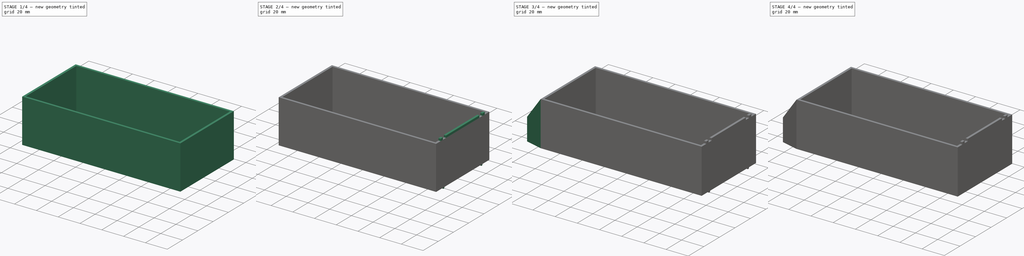
[diagram: build sequence overview — one tinted view per stage of 4, left to right]
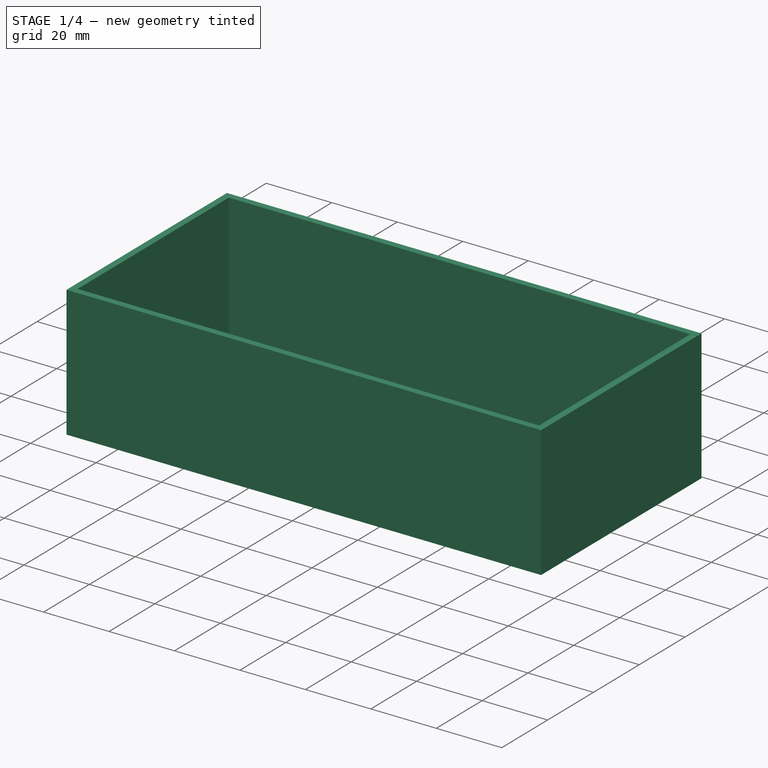
[diagram: stage 1 of 4 — iso view after this stage's code; geometry added in this stage tinted green]
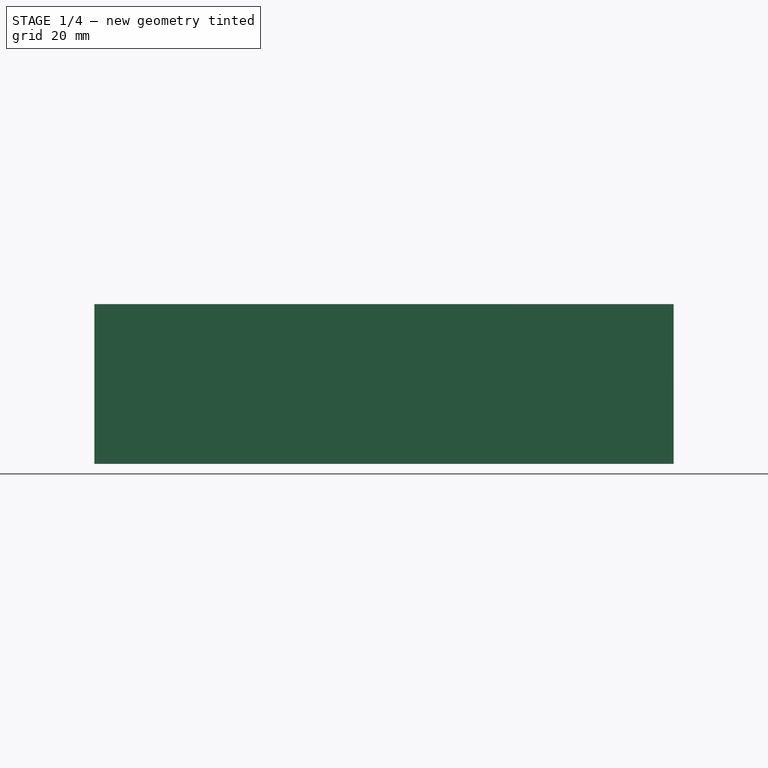
[diagram: stage 1 of 4 — front view after this stage's code; geometry added in this stage tinted green]
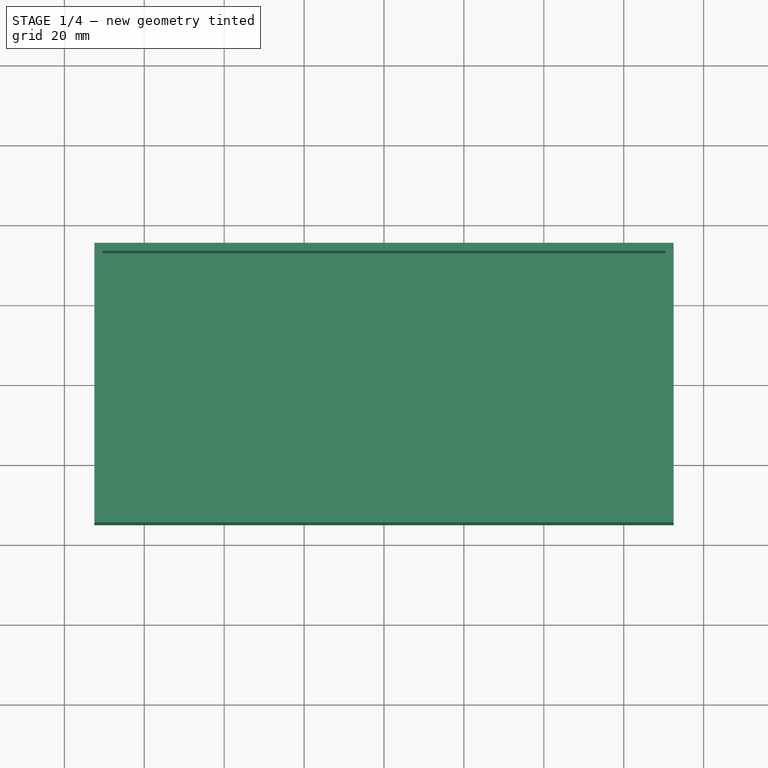
[diagram: stage 1 of 4 — top view after this stage's code; geometry added in this stage tinted green]
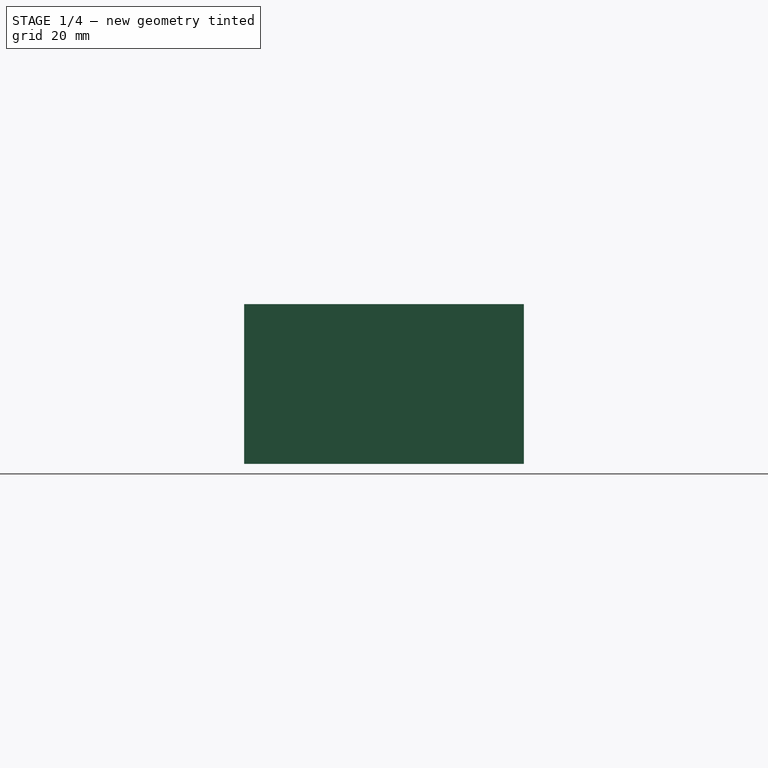
[diagram: stage 1 of 4 — right view after this stage's code; geometry added in this stage tinted green]
FCSTD DOCUMENT  (FreeCAD 0.16R)
Label: cajon organizador
License: All rights reserved
LicenseURL: http://en.wikipedia.org/wiki/All_rights_reserved
objects: Sketcher::SketchObject×9, PartDesign::Pad×5, PartDesign::Pocket×4, PartDesign::Fillet×1, Part::Feature×1
note: 29 computed .brp shape members not serialized (recipe doc carries the construction recipe); baked Part::Feature solids carry a one-line shape summary decoded from their .brp

FEATURE [Sketcher::SketchObject] Sketch
  sketch-geometry (4):
    g0: LineSegment StartX=-72.5 StartY=35 StartZ=0 EndX=72.5 EndY=35 EndZ=0
    g1: LineSegment StartX=72.5 StartY=35 StartZ=0 EndX=72.5 EndY=-35 EndZ=0
    g2: LineSegment StartX=72.5 StartY=-35 StartZ=0 EndX=-72.5 EndY=-35 EndZ=0
    g3: LineSegment StartX=-72.5 StartY=-35 StartZ=0 EndX=-72.5 EndY=35 EndZ=0
  constraints (12):
    c: Coincident(g0,g1)
    c: Coincident(g1,g2)
    c: Coincident(g2,g3)
    c: Coincident(g3,g0)
    c: Horizontal(g0)
    c: Horizontal(g2)
    c: Vertical(g1)
    c: Vertical(g3)
    c: DistanceX(g2,g2) = 145
    c: Symmetric(g0,g0,g-2)
    c: Symmetric(g2,g0,g-1)
    c: DistanceY(g1,g1) = 70
FEATURE [PartDesign::Pad] Pad
  Length = 2
  Length2 = 100
  Sketch = -> Sketch
  Type = 0
FEATURE [Sketcher::SketchObject] Sketch001
  ExternalGeometry = -> [Pad]
  Placement = pos=(0,0,2) rot=(0,0,1;0rad)
  Support = -> Pad [Face6]
  sketch-geometry (16):
    g0: LineSegment StartX=-72.5 StartY=35 StartZ=0 EndX=72.5 EndY=35 EndZ=0
    g1: LineSegment StartX=72.5 StartY=35 StartZ=0 EndX=72.5 EndY=33 EndZ=0
    g2: LineSegment StartX=72.5 StartY=33 StartZ=0 EndX=-72.5 EndY=33 EndZ=0
    g3: LineSegment StartX=-72.5 StartY=33 StartZ=0 EndX=-72.5 EndY=35 EndZ=0
    g4: LineSegment StartX=-72.5 StartY=-33 StartZ=0 EndX=72.5 EndY=-33 EndZ=0
    g5: LineSegment StartX=72.5 StartY=-33 StartZ=0 EndX=72.5 EndY=-35 EndZ=0
    g6: LineSegment StartX=72.5 StartY=-35 StartZ=0 EndX=-72.5 EndY=-35 EndZ=0
    g7: LineSegment StartX=-72.5 StartY=-35 StartZ=0 EndX=-72.5 EndY=-33 EndZ=0
    g8: LineSegment StartX=70.5 StartY=33 StartZ=0 EndX=72.5 EndY=33 EndZ=0
    g9: LineSegment StartX=72.5 StartY=33 StartZ=0 EndX=72.5 EndY=-33 EndZ=0
    g10: LineSegment StartX=72.5 StartY=-33 StartZ=0 EndX=70.5 EndY=-33 EndZ=0
    g11: LineSegment StartX=70.5 StartY=-33 StartZ=0 EndX=70.5 EndY=33 EndZ=0
    g12: LineSegment StartX=-72.5 StartY=33 StartZ=0 EndX=-70.5 EndY=33 EndZ=0
    g13: LineSegment StartX=-70.5 StartY=33 StartZ=0 EndX=-70.5 EndY=-33 EndZ=0
    g14: LineSegment StartX=-70.5 StartY=-33 StartZ=0 EndX=-72.5 EndY=-33 EndZ=0
    g15: LineSegment StartX=-72.5 StartY=-33 StartZ=0 EndX=-72.5 EndY=33 EndZ=0
  constraints (44):
    c: Coincident(g0,g1)
    c: Coincident(g1,g2)
    c: Coincident(g2,g3)
    c: Coincident(g3,g0)
    c: Horizontal(g0)
    c: Horizontal(g2)
    c: Vertical(g1)
    c: Vertical(g3)
    c: Coincident(g4,g5)
    c: Coincident(g5,g6)
    c: Coincident(g6,g7)
    c: Coincident(g7,g4)
    c: Horizontal(g4)
    c: Horizontal(g6)
    c: Vertical(g5)
    c: Vertical(g7)
    c: Coincident(g8,g9)
    c: Coincident(g9,g10)
    c: Coincident(g10,g11)
    c: Coincident(g11,g8)
    c: Horizontal(g8)
    c: Horizontal(g10)
    c: Vertical(g9)
    c: Vertical(g11)
    c: Coincident(g12,g13)
    c: Coincident(g13,g14)
    c: Coincident(g14,g15)
    c: Coincident(g15,g12)
    c: Horizontal(g12)
    c: Horizontal(g14)
    c: Vertical(g13)
    c: Vertical(g15)
    c: Coincident(g0,g-3)
    c: Coincident(g0,g-3)
    c: Coincident(g5,g-4)
    c: Coincident(g6,g-4)
    c: DistanceY(g6,g4) = 2
    c: DistanceY(g2,g0) = 2
    c: Coincident(g12,g2)
    c: Coincident(g14,g4)
    c: DistanceX(g2,g12) = 2
    c: Coincident(g8,g1)
    c: Coincident(g4,g9)
    c: DistanceX(g10,g4) = 2
FEATURE [PartDesign::Pad] Pad001
  Length = 38
  Length2 = 100
  Sketch = -> Sketch001
  Type = 0
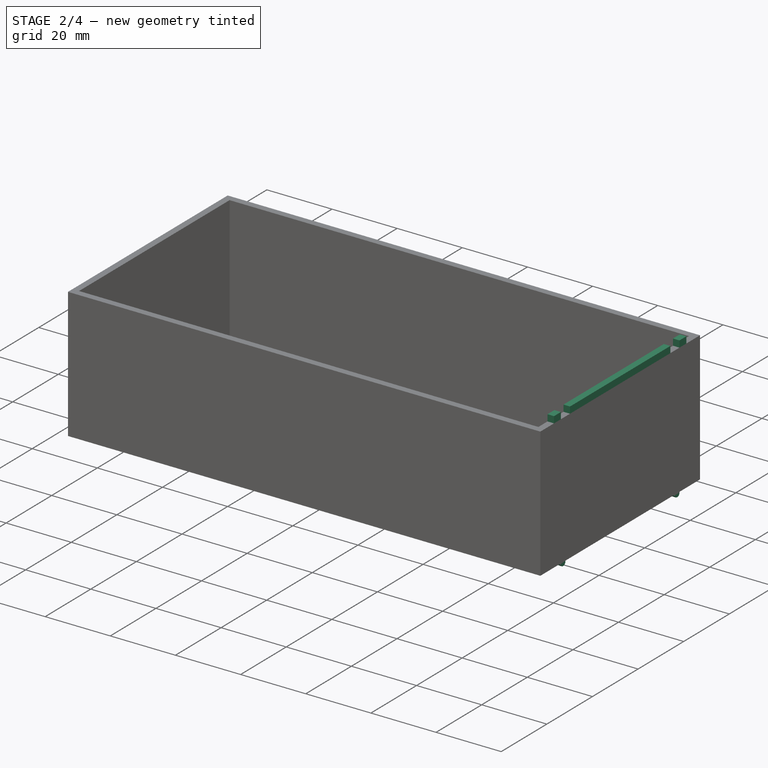
[diagram: stage 2 of 4 — iso view after this stage's code; geometry added in this stage tinted green]
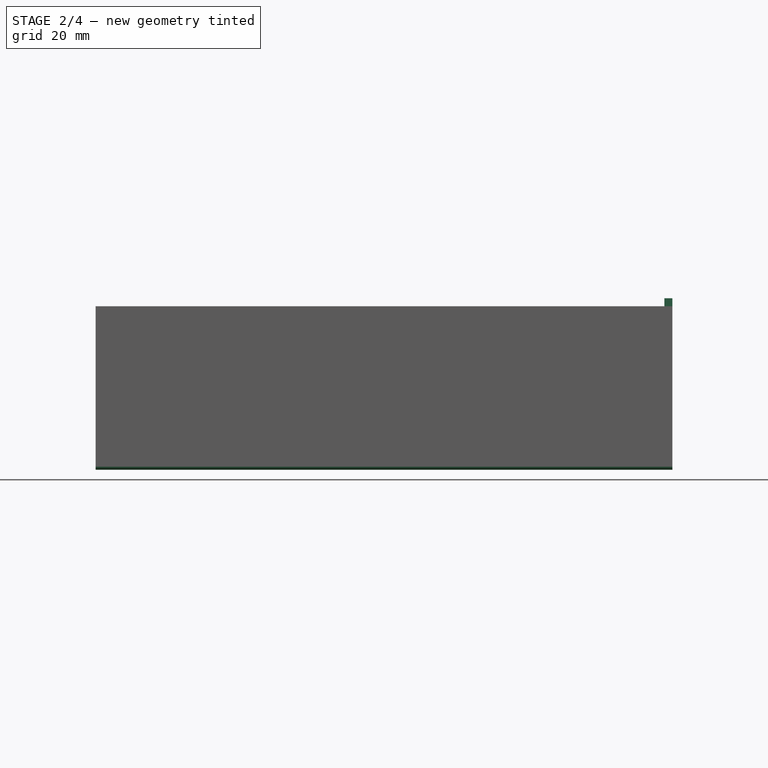
[diagram: stage 2 of 4 — front view after this stage's code; geometry added in this stage tinted green]
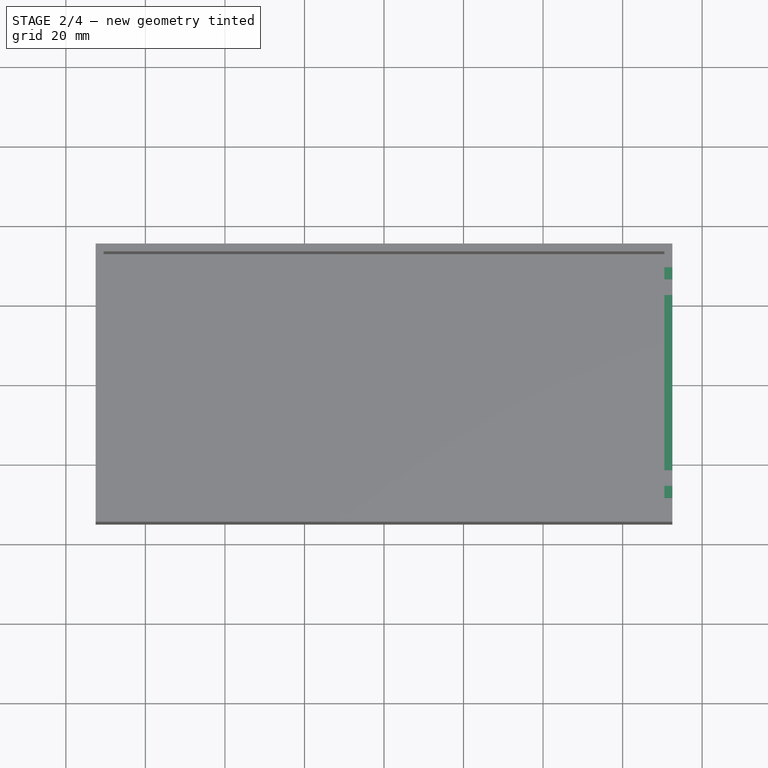
[diagram: stage 2 of 4 — top view after this stage's code; geometry added in this stage tinted green]
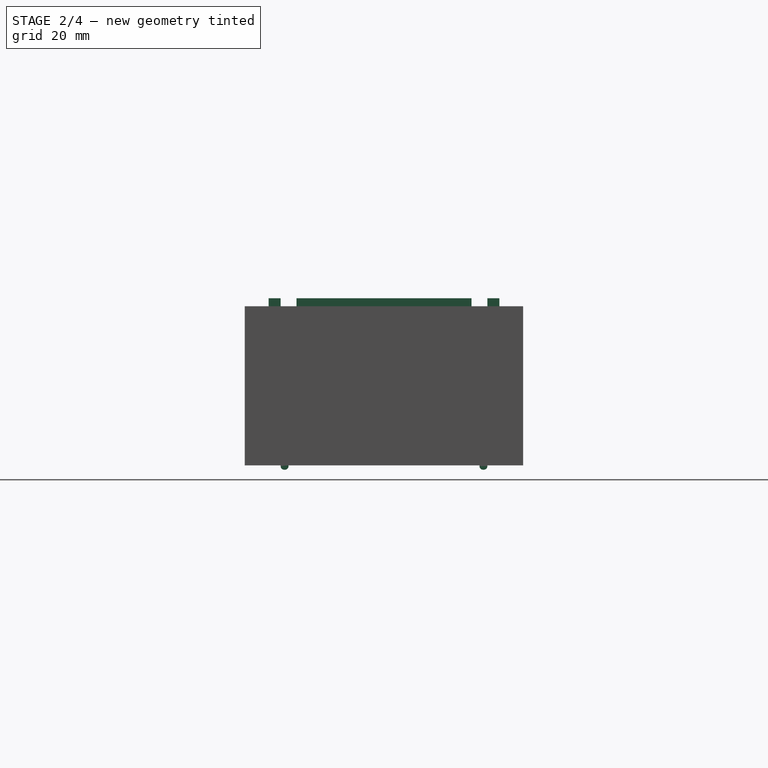
[diagram: stage 2 of 4 — right view after this stage's code; geometry added in this stage tinted green]
FEATURE [Sketcher::SketchObject] Sketch002
  ExternalGeometry = -> [Pad001]
  Placement = pos=(0,0,0) rot=(1,0,0;3.14159rad)
  Support = -> Pad001 [Face8]
  sketch-geometry (8):
    g0: LineSegment StartX=-72.5 StartY=26 StartZ=0 EndX=72.5 EndY=26 EndZ=0
    g1: LineSegment StartX=72.5 StartY=26 StartZ=0 EndX=72.5 EndY=24 EndZ=0
    g2: LineSegment StartX=72.5 StartY=24 StartZ=0 EndX=-72.5 EndY=24 EndZ=0
    g3: LineSegment StartX=-72.5 StartY=24 StartZ=0 EndX=-72.5 EndY=26 EndZ=0
    g4: LineSegment StartX=-72.5 StartY=-24 StartZ=0 EndX=72.5 EndY=-24 EndZ=0
    g5: LineSegment StartX=72.5 StartY=-24 StartZ=0 EndX=72.5 EndY=-26 EndZ=0
    g6: LineSegment StartX=72.5 StartY=-26 StartZ=0 EndX=-72.5 EndY=-26 EndZ=0
    g7: LineSegment StartX=-72.5 StartY=-26 StartZ=0 EndX=-72.5 EndY=-24 EndZ=0
  constraints (24):
    c: Coincident(g0,g1)
    c: Coincident(g1,g2)
    c: Coincident(g2,g3)
    c: Coincident(g3,g0)
    c: Horizontal(g0)
    c: Horizontal(g2)
    c: Vertical(g1)
    c: Vertical(g3)
    c: Coincident(g4,g5)
    c: Coincident(g5,g6)
    c: Coincident(g6,g7)
    c: Coincident(g7,g4)
    c: Horizontal(g4)
    c: Horizontal(g6)
    c: Vertical(g5)
    c: Vertical(g7)
    c: DistanceY(g5,g5) = 2
    c: DistanceY(g2,g0) = 2
    c: PointOnObject(g0,g-3)
    c: PointOnObject(g2,g-4)
    c: DistanceY(g0,g-4) = 9
    c: PointOnObject(g4,g-4)
    c: PointOnObject(g5,g-3)
    c: DistanceY(g-3,g5) = 9
FEATURE [PartDesign::Pad] Pad002
  Length = 1.1
  Length2 = 100
  Sketch = -> Sketch002
  Type = 0
FEATURE [PartDesign::Fillet] Fillet
  Base = -> Pad002 [Edge45,Edge42,Edge33,Edge30]
  Radius = 0.9
FEATURE [Sketcher::SketchObject] Sketch003
  ExternalGeometry = -> [Fillet]
  Placement = pos=(0,0,40) rot=(0,0,1;0rad)
  Support = -> Fillet [Face12]
  sketch-geometry (12):
    g0: LineSegment StartX=70.5 StartY=29 StartZ=0 EndX=72.5 EndY=29 EndZ=0
    g1: LineSegment StartX=72.5 StartY=29 StartZ=0 EndX=72.5 EndY=26 EndZ=0
    g2: LineSegment StartX=72.5 StartY=26 StartZ=0 EndX=70.5 EndY=26 EndZ=0
    g3: LineSegment StartX=70.5 StartY=26 StartZ=0 EndX=70.5 EndY=29 EndZ=0
    g4: LineSegment StartX=70.5 StartY=-26 StartZ=0 EndX=72.5 EndY=-26 EndZ=0
    g5: LineSegment StartX=72.5 StartY=-26 StartZ=0 EndX=72.5 EndY=-29 EndZ=0
    g6: LineSegment StartX=72.5 StartY=-29 StartZ=0 EndX=70.5 EndY=-29 EndZ=0
    g7: LineSegment StartX=70.5 StartY=-29 StartZ=0 EndX=70.5 EndY=-26 EndZ=0
    g8: LineSegment StartX=70.5 StartY=22 StartZ=0 EndX=72.5 EndY=22 EndZ=0
    g9: LineSegment StartX=72.5 StartY=22 StartZ=0 EndX=72.5 EndY=-22 EndZ=0
    g10: LineSegment StartX=72.5 StartY=-22 StartZ=0 EndX=70.5 EndY=-22 EndZ=0
    g11: LineSegment StartX=70.5 StartY=-22 StartZ=0 EndX=70.5 EndY=22 EndZ=0
  constraints (36):
    c: Coincident(g0,g1)
    c: Coincident(g1,g2)
    c: Coincident(g2,g3)
    c: Coincident(g3,g0)
    c: Horizontal(g0)
    c: Horizontal(g2)
    c: Vertical(g1)
    c: Vertical(g3)
    c: Coincident(g4,g5)
    c: Coincident(g5,g6)
    c: Coincident(g6,g7)
    c: Coincident(g7,g4)
    c: Horizontal(g4)
    c: Horizontal(g6)
    c: Vertical(g5)
    c: Vertical(g7)
    c: DistanceY(g1,g1) = 3
    c: DistanceY(g5,g5) = 3
    c: DistanceX(g4,g4) = 2
    c: DistanceX(g2,g1) = 2
    c: DistanceX(g0,g-3) = 0
    c: DistanceY(g0,g-3) = 6
    c: DistanceY(g-4,g5) = 6
    c: DistanceX(g5,g-4) = 0
    c: Coincident(g8,g9)
    c: Coincident(g9,g10)
    c: Coincident(g10,g11)
    c: Coincident(g11,g8)
    c: Horizontal(g8)
    c: Horizontal(g10)
    c: Vertical(g9)
    c: Vertical(g11)
    c: DistanceY(g8,g-3) = 13
    c: DistanceY(g-4,g9) = 13
    c: DistanceX(g10,g10) = 2
    c: DistanceX(g9,g-4) = 0
FEATURE [PartDesign::Pad] Pad003
  Length = 2
  Length2 = 100
  Sketch = -> Sketch003
  Type = 0
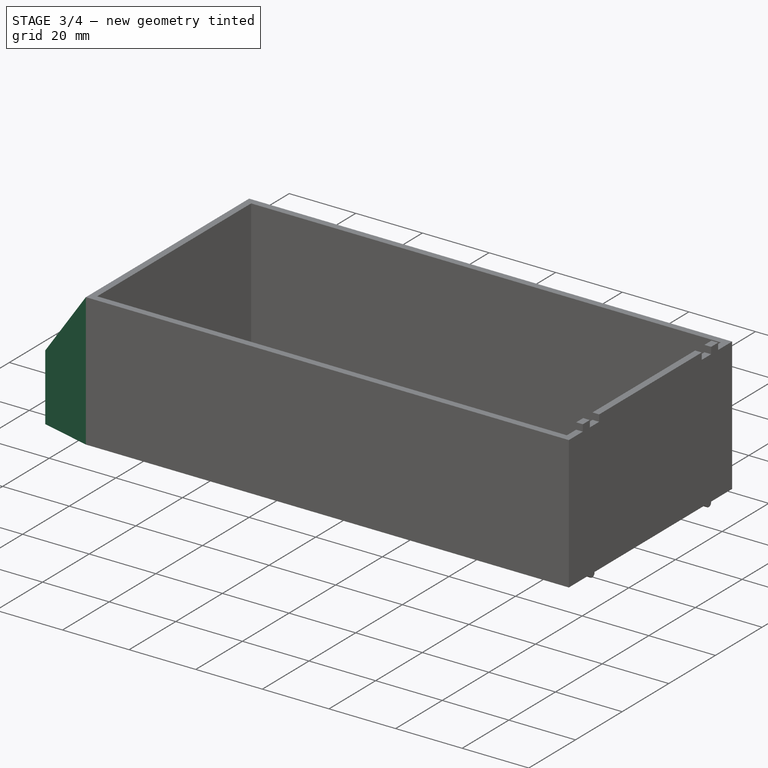
[diagram: stage 3 of 4 — iso view after this stage's code; geometry added in this stage tinted green]
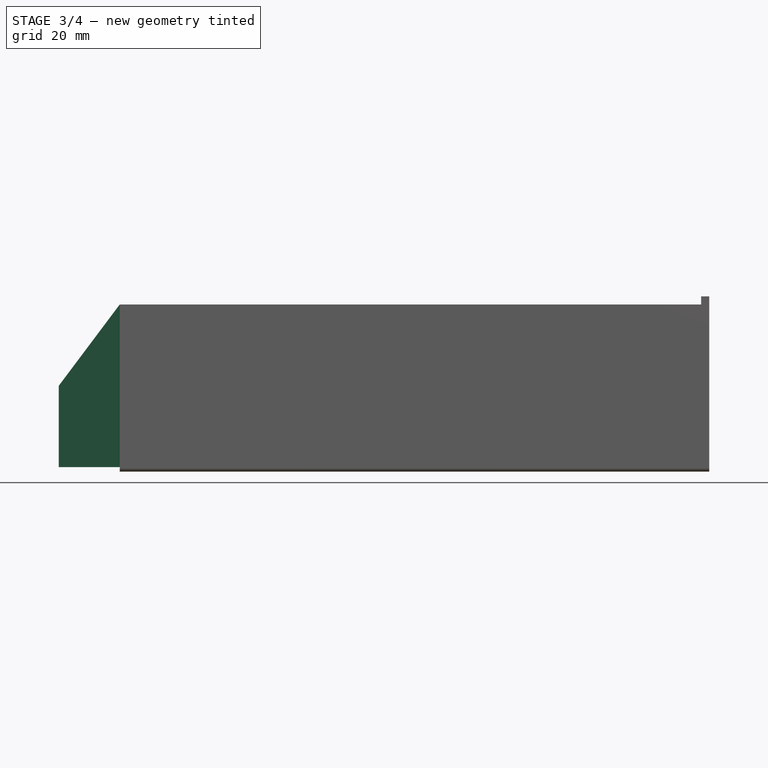
[diagram: stage 3 of 4 — front view after this stage's code; geometry added in this stage tinted green]
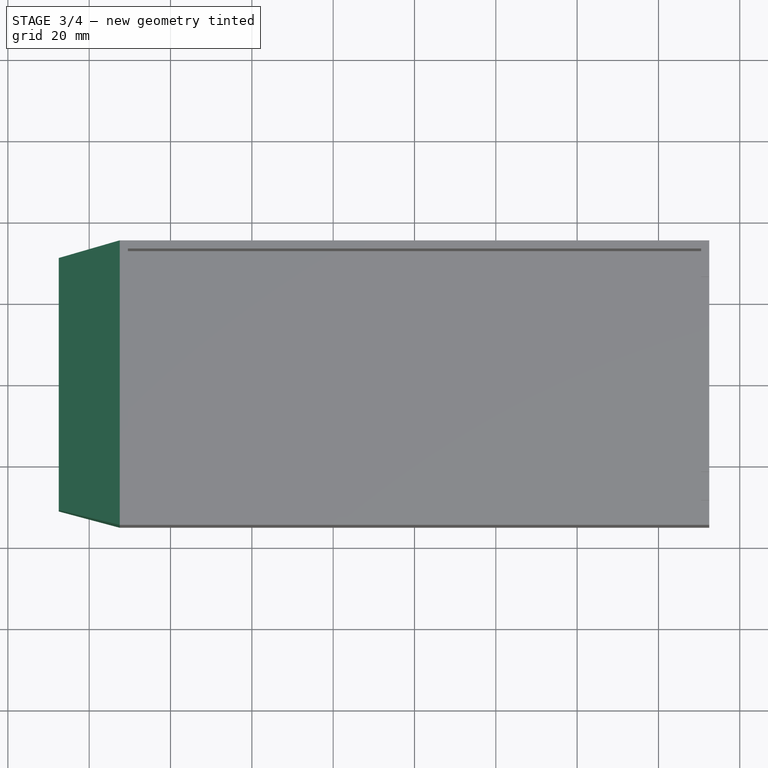
[diagram: stage 3 of 4 — top view after this stage's code; geometry added in this stage tinted green]
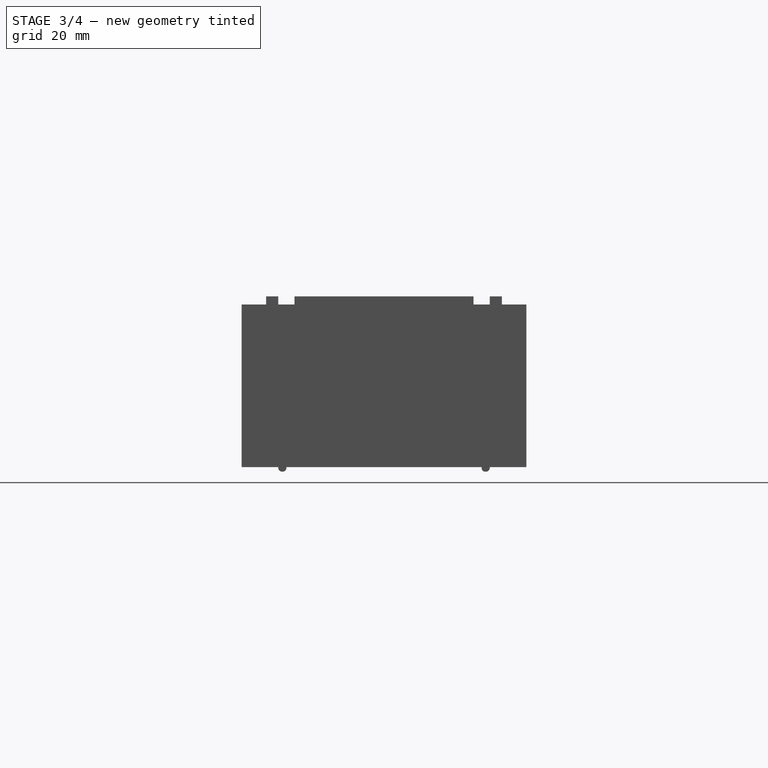
[diagram: stage 3 of 4 — right view after this stage's code; geometry added in this stage tinted green]
FEATURE [Sketcher::SketchObject] Sketch004
  ExternalGeometry = -> [Pad003]
  Placement = pos=(-72.5,0,0) rot=(0.57735,-0.57735,-0.57735;2.0944rad)
  Support = -> Pad003 [Face8]
  sketch-geometry (4):
    g0: LineSegment StartX=-35 StartY=40 StartZ=0 EndX=35 EndY=40 EndZ=0
    g1: LineSegment StartX=35 StartY=40 StartZ=0 EndX=35 EndY=0 EndZ=0
    g2: LineSegment StartX=35 StartY=0 StartZ=0 EndX=-35 EndY=0 EndZ=0
    g3: LineSegment StartX=-35 StartY=0 StartZ=0 EndX=-35 EndY=40 EndZ=0
  constraints (11):
    c: Coincident(g0,g1)
    c: Coincident(g1,g2)
    c: Coincident(g2,g3)
    c: Coincident(g3,g0)
    c: Horizontal(g0)
    c: Horizontal(g2)
    c: Vertical(g1)
    c: Vertical(g3)
    c: Coincident(g1,g-3)
    c: Coincident(g2,g-4)
    c: Coincident(g0,g-4)
FEATURE [PartDesign::Pad] Pad004
  Length = 15
  Length2 = 100
  Sketch = -> Sketch004
  Type = 0
FEATURE [Sketcher::SketchObject] Sketch005
  ExternalGeometry = -> [Pad004]
  Placement = pos=(0,35,0) rot=(0,0.707107,0.707107;3.14159rad)
  Support = -> Pad004 [Face33]
  sketch-geometry (3):
    g0: LineSegment StartX=87.5 StartY=40 StartZ=0 EndX=72.5 EndY=40 EndZ=0
    g1: LineSegment StartX=87.5 StartY=40 StartZ=0 EndX=87.5 EndY=20 EndZ=0
    g2: LineSegment StartX=72.5 StartY=40 StartZ=0 EndX=87.5 EndY=20 EndZ=0
  constraints (8):
    c: Coincident(g0,g-4)
    c: PointOnObject(g0,g-3)
    c: Coincident(g1,g0)
    c: PointOnObject(g1,g-4)
    c: DistanceX(g0,g0) = 15
    c: DistanceY(g-4,g1) = 20
    c: Coincident(g2,g0)
    c: Coincident(g2,g1)
FEATURE [PartDesign::Pocket] Pocket
  Length = 5
  Sketch = -> Sketch005
  Type = 1
FEATURE [Sketcher::SketchObject] Sketch006
  ExternalGeometry = -> [Pocket]
  Placement = pos=(0,0,0) rot=(1,0,0;3.14159rad)
  Support = -> Pocket [Face11]
  sketch-geometry (7):
    g0: LineSegment StartX=-87.5 StartY=35 StartZ=0 EndX=-72.5 EndY=35 EndZ=0
    g1: LineSegment StartX=-87.5 StartY=-35 StartZ=0 EndX=-72.5 EndY=-35 EndZ=0
    g2: LineSegment [constr] StartX=-87.5 StartY=31 StartZ=0 EndX=-87.5 EndY=-31 EndZ=0
    g3: LineSegment StartX=-87.5 StartY=31 StartZ=0 EndX=-87.5 EndY=35 EndZ=0
    g4: LineSegment StartX=-87.5 StartY=31 StartZ=0 EndX=-72.5 EndY=35 EndZ=0
    g5: LineSegment StartX=-87.5 StartY=-31 StartZ=0 EndX=-87.5 EndY=-35 EndZ=0
    g6: LineSegment StartX=-87.5 StartY=-31 StartZ=0 EndX=-72.5 EndY=-35 EndZ=0
  constraints (18):
    c: Coincident(g0,g-3)
    c: PointOnObject(g0,g-3)
    c: DistanceX(g0,g0) = 15
    c: Coincident(g1,g-4)
    c: PointOnObject(g1,g-4)
    c: DistanceX(g1,g1) = 15
    c: Vertical(g2)
    c: DistanceY(g2,g2) = 62
    c: Symmetric(g2,g2,g-1)
    c: PointOnObject(g2,g-5)
    c: Coincident(g3,g0)
    c: Vertical(g3)
    c: Coincident(g4,g2)
    c: Coincident(g4,g0)
    c: Coincident(g5,g2)
    c: Coincident(g5,g1)
    c: Coincident(g6,g2)
    c: Coincident(g6,g1)
FEATURE [PartDesign::Pocket] Pocket001
  Length = 5
  Sketch = -> Sketch006
  Type = 1
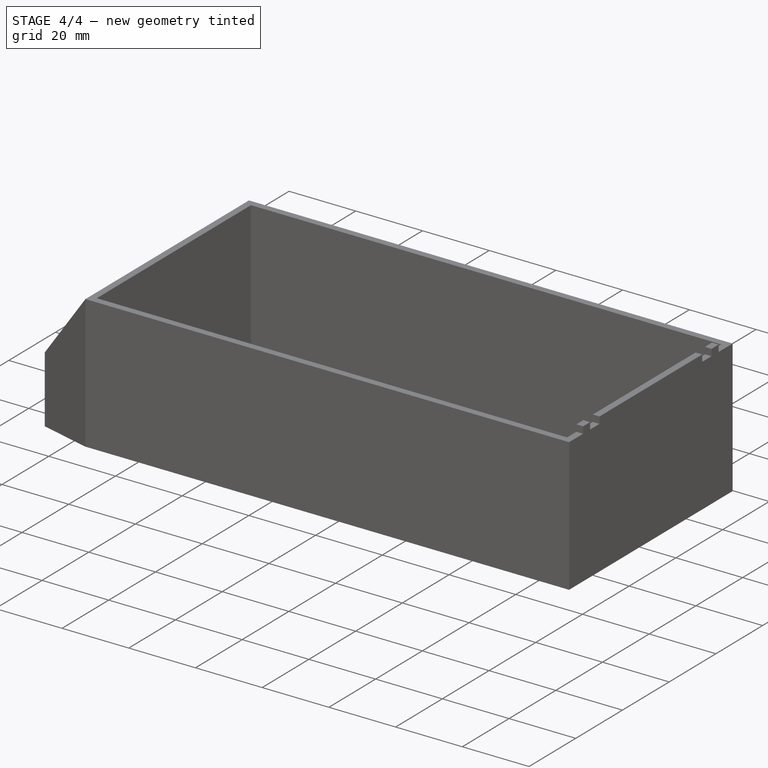
[diagram: stage 4 of 4 — iso view after this stage's code; geometry added in this stage tinted green]
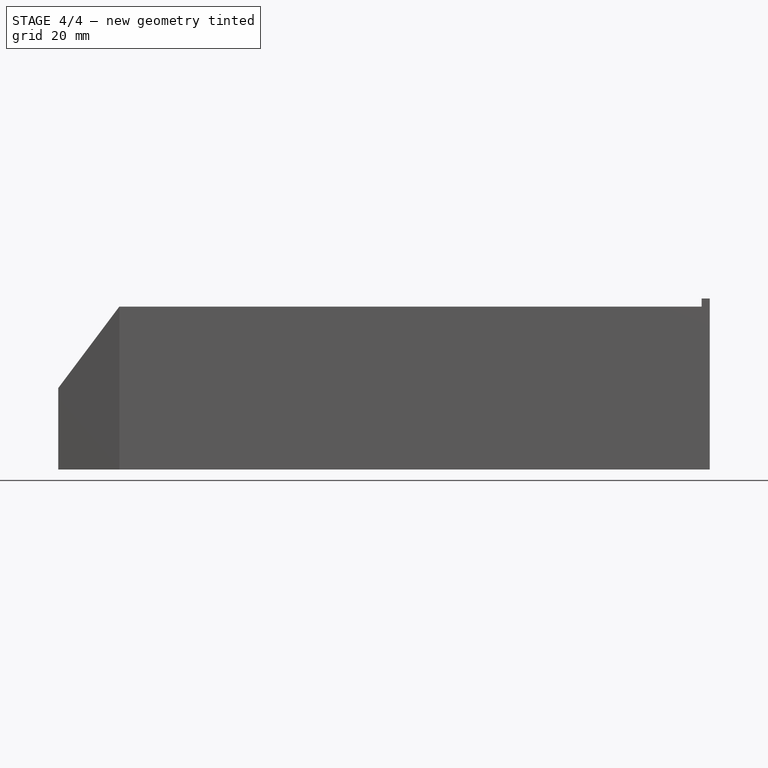
[diagram: stage 4 of 4 — front view after this stage's code; geometry added in this stage tinted green]
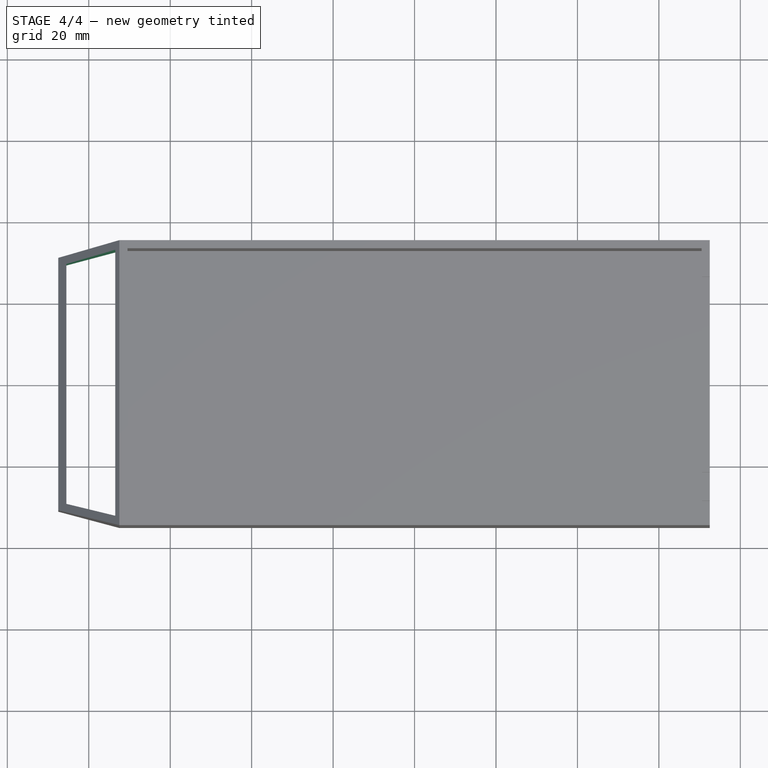
[diagram: stage 4 of 4 — top view after this stage's code; geometry added in this stage tinted green]
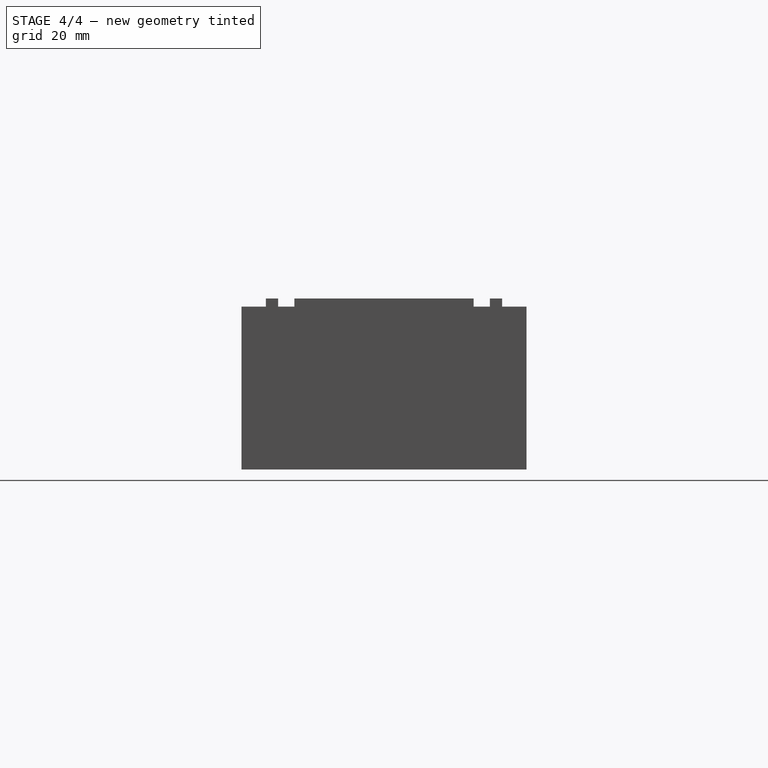
[diagram: stage 4 of 4 — right view after this stage's code; geometry added in this stage tinted green]
FEATURE [Sketcher::SketchObject] Sketch007
  ExternalGeometry = -> [Pocket001]
  Placement = pos=(0,0,0) rot=(1,0,0;3.14159rad)
  Support = -> Pocket001 [Face11]
  sketch-geometry (7):
    g0: LineSegment StartX=-85.5 StartY=29.4634 StartZ=0 EndX=-85.5 EndY=-29.4634 EndZ=0
    g1: LineSegment StartX=-85.5 StartY=-29.4634 StartZ=0 EndX=-73.5 EndY=-32.6634 EndZ=0
    g2: LineSegment StartX=-73.5 StartY=-32.6634 StartZ=0 EndX=-73.5 EndY=32.6634 EndZ=0
    g3: LineSegment StartX=-73.5 StartY=32.6634 StartZ=0 EndX=-85.5 EndY=29.4634 EndZ=0
    g4: LineSegment [constr] StartX=-87.5 StartY=8.52405 StartZ=0 EndX=-85.5 EndY=8.52405 EndZ=0
    g5: LineSegment [constr] StartX=-80.7016 StartY=-30.743 StartZ=0 EndX=-81.2169 EndY=-32.6755 EndZ=0
    g6: LineSegment [constr] StartX=-80.8089 StartY=32.7843 StartZ=0 EndX=-80.2936 EndY=30.8518 EndZ=0
  constraints (21):
    c: Vertical(g0)
    c: Coincident(g0,g1)
    c: Coincident(g1,g2)
    c: Vertical(g2)
    c: Coincident(g2,g3)
    c: Coincident(g3,g0)
    c: PointOnObject(g4,g-5)
    c: PointOnObject(g4,g0)
    c: PointOnObject(g5,g1)
    c: PointOnObject(g5,g-4)
    c: Perpendicular(g6,g3)
    c: Perpendicular(g6,g-3)
    c: Perpendicular(g0,g4)
    c: Perpendicular(g1,g5)
    c: Perpendicular(g-4,g5)
    c: DistanceX(g4,g4) = 2
    c: Distance(g5) = 2
    c: Distance(g6) = 2
    c: PointOnObject(g6,g-3)
    c: PointOnObject(g6,g3)
    c: DistanceX(g0,g1) = 12
FEATURE [PartDesign::Pocket] Pocket002
  Length = 5
  Sketch = -> Sketch007
  Type = 1
FEATURE [Sketcher::SketchObject] Sketch008
  Placement = pos=(72.5,0,0) rot=(0.57735,0.57735,0.57735;2.0944rad)
  Support = -> Pocket002 [Face2]
  sketch-geometry (4):
    g0: LineSegment StartX=-32.4475 StartY=-8.52262 StartZ=0 EndX=34.3831 EndY=-8.52262 EndZ=0
    g1: LineSegment StartX=34.3831 StartY=-8.52262 StartZ=0 EndX=34.3831 EndY=0 EndZ=0
    g2: LineSegment StartX=34.3831 StartY=0 StartZ=0 EndX=-32.4475 EndY=0 EndZ=0
    g3: LineSegment StartX=-32.4475 StartY=0 StartZ=0 EndX=-32.4475 EndY=-8.52262 EndZ=0
  constraints (9):
    c: Coincident(g0,g1)
    c: Coincident(g1,g2)
    c: Coincident(g2,g3)
    c: Coincident(g3,g0)
    c: Horizontal(g0)
    c: Horizontal(g2)
    c: Vertical(g1)
    c: Vertical(g3)
    c: PointOnObject(g2,g-1)
FEATURE [PartDesign::Pocket] Pocket003
  Length = 5
  Sketch = -> Sketch008
  Type = 1
FEATURE [Part::Feature] Pocket003001  label="Pocket004"
  shape: bbox 160 x 70 x 42 mm, 29 faces (baked)
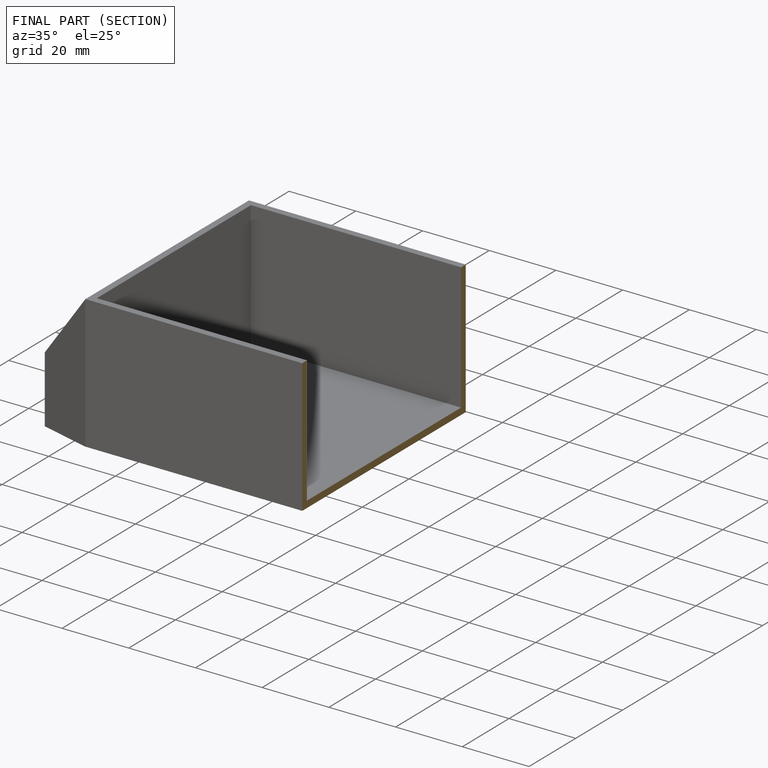
[diagram: finished part — half-section view (interior)]
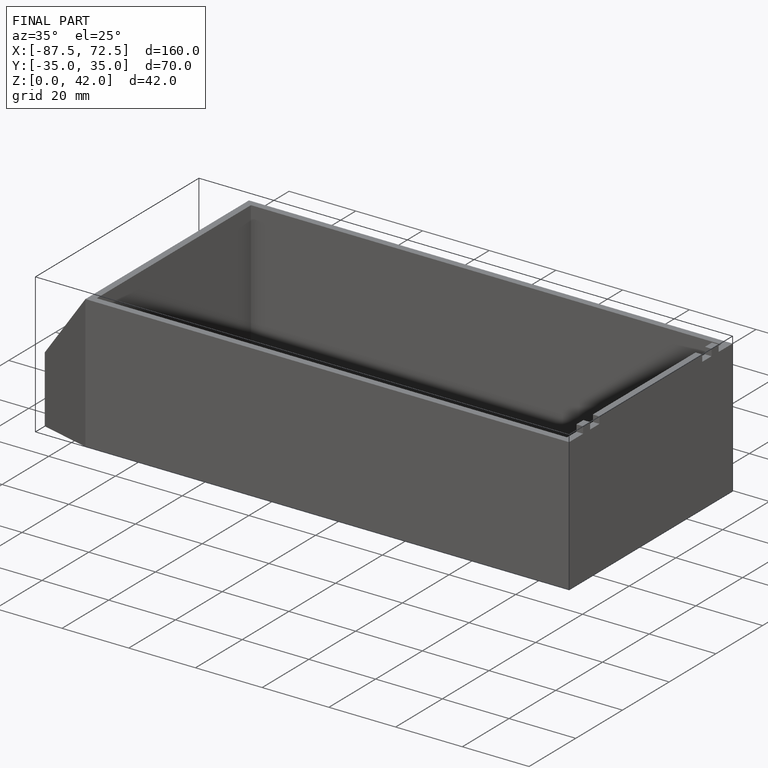
[diagram: finished part — iso view with bounding-box wireframe]
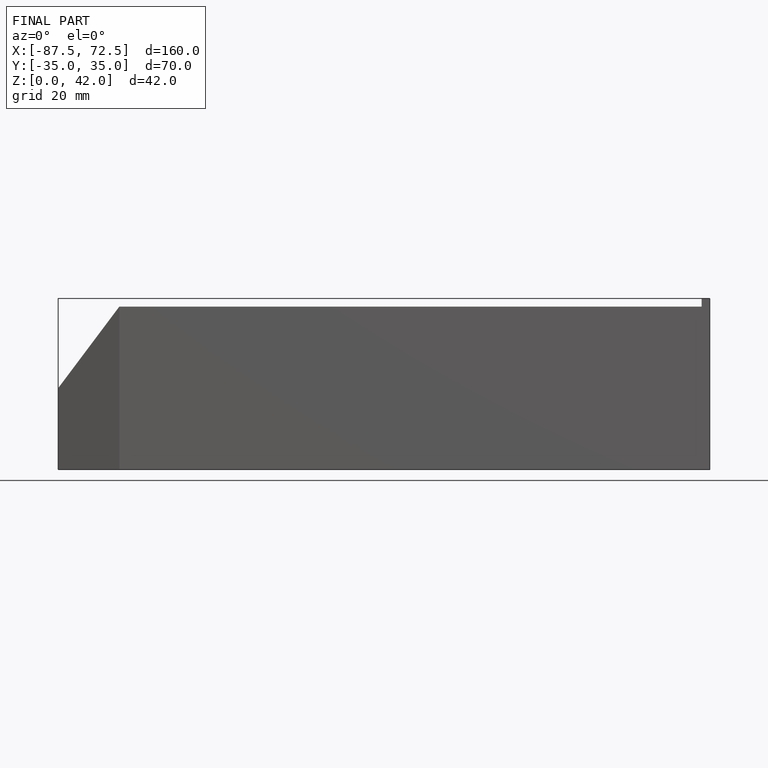
[diagram: finished part — front view with bounding-box wireframe]
